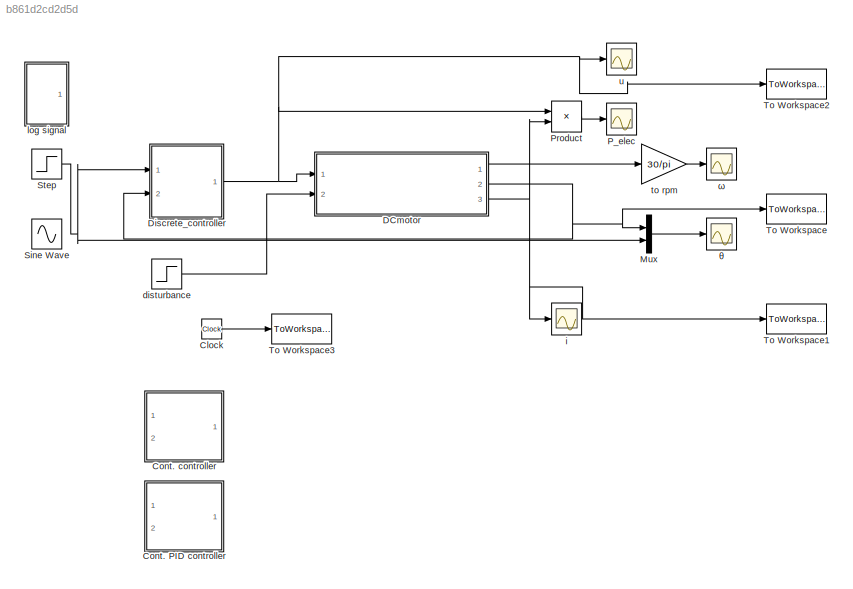
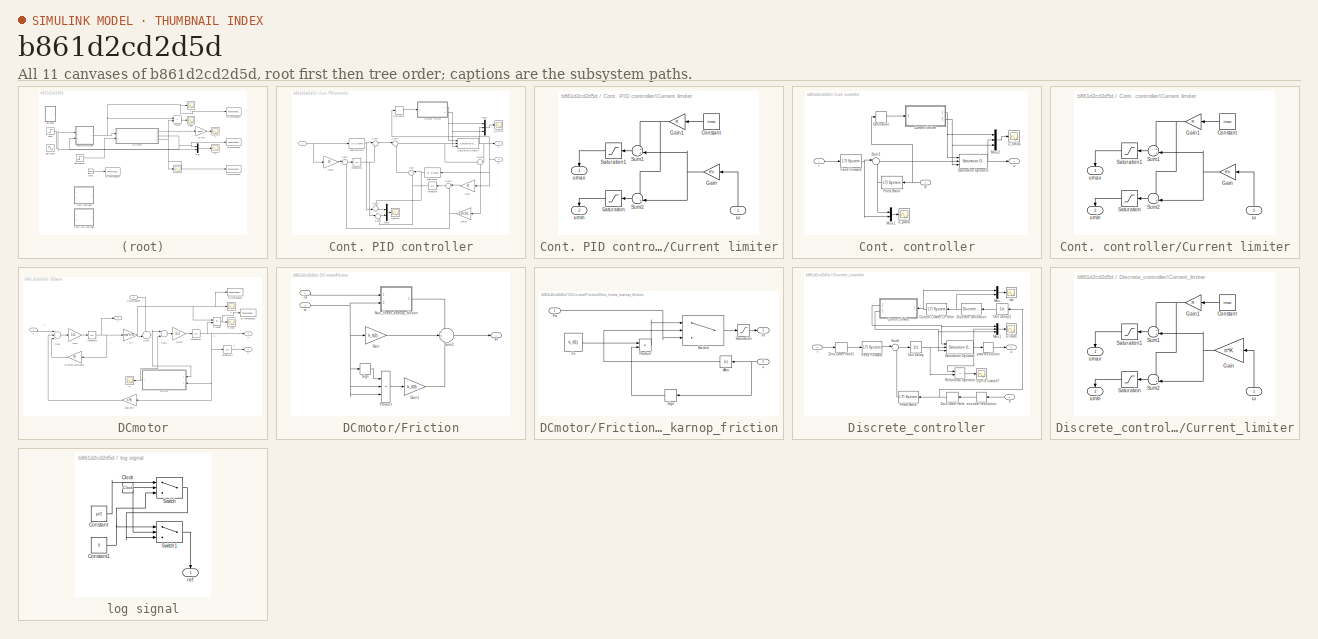
[diagram: thumbnail index - all 11 canvases of the model, root first then tree order]
MODEL slx_b861d2cd2d5d
KIND model
BLOCK [Clock] Clock
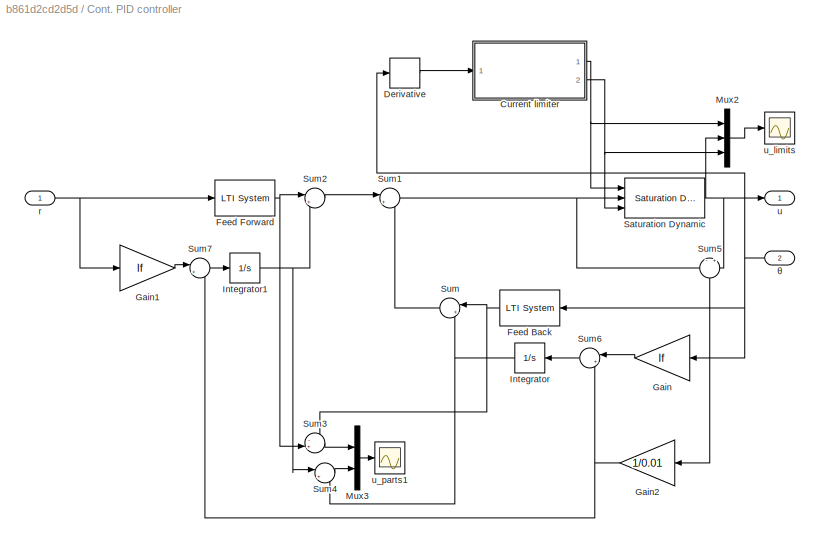
BLOCK [SubSystem] Cont. PID controller
  Commented = on
  Ports = [2, 1]
  RequestExecContextInheritance = off
BLOCK [SubSystem] Cont. PID controller/Current limiter
  Ports = [1, 2]
  RequestExecContextInheritance = off
BLOCK [Constant] Cont. PID controller/Current limiter/Constant
  Value = imax
BLOCK [Gain] Cont. PID controller/Current limiter/Gain
  Gain = K*n
  OutDataTypeStr = Inherit: Inherit via internal rule
  ParamDataTypeStr = Inherit: Inherit via internal rule
  SaturateOnIntegerOverflow = off
BLOCK [Gain] Cont. PID controller/Current limiter/Gain1
  Gain = R
  OutDataTypeStr = Inherit: Inherit via internal rule
  ParamDataTypeStr = Inherit: Inherit via internal rule
  SaturateOnIntegerOverflow = off
BLOCK [Saturate] Cont. PID controller/Current limiter/Saturation
  InputPortMap = u0
  LowerLimit = -umax
  Ports = [1, 1]
  UpperLimit = umax
BLOCK [Saturate] Cont. PID controller/Current limiter/Saturation1
  InputPortMap = u0
  LowerLimit = -umax
  Ports = [1, 1]
  UpperLimit = umax
BLOCK [Sum] Cont. PID controller/Current limiter/Sum1
  IconShape = round
  InputSameDT = off
  Inputs = ++|
  OutDataTypeStr = Inherit: Inherit via internal rule
  Ports = [2, 1]
  SaturateOnIntegerOverflow = off
BLOCK [Sum] Cont. PID controller/Current limiter/Sum2
  IconShape = round
  InputSameDT = off
  Inputs = -+|
  OutDataTypeStr = Inherit: Inherit via internal rule
  Ports = [2, 1]
  SaturateOnIntegerOverflow = off
BLOCK [Outport] Cont. PID controller/Current limiter/umax
  IconDisplay = Port number
BLOCK [Outport] Cont. PID controller/Current limiter/umin
  IconDisplay = Port number
  Port = 2
BLOCK [Inport] Cont. PID controller/Current limiter/ω
  IconDisplay = Port number
BLOCK [Derivative] Cont. PID controller/Derivative
BLOCK [Reference] Cont. PID controller/Feed Back  REF=cstblocks/LTI System
  IC = []
  Ports = [1, 1]
  SourceBlock = cstblocks/LTI System
  SourceType = LTI Block
  sys = Sfc/Rfc
BLOCK [Reference] Cont. PID controller/Feed Forward  REF=cstblocks/LTI System
  IC = []
  Ports = [1, 1]
  SourceBlock = cstblocks/LTI System
  SourceType = LTI Block
  sys = Tfc/Rfc
BLOCK [Gain] Cont. PID controller/Gain
  Gain = If
  OutDataTypeStr = Inherit: Inherit via internal rule
  ParamDataTypeStr = Inherit: Inherit via internal rule
  SaturateOnIntegerOverflow = off
BLOCK [Gain] Cont. PID controller/Gain1
  Gain = If
  OutDataTypeStr = Inherit: Inherit via internal rule
  ParamDataTypeStr = Inherit: Inherit via internal rule
  SaturateOnIntegerOverflow = off
BLOCK [Gain] Cont. PID controller/Gain2
  Gain = 1/0.01
  OutDataTypeStr = Inherit: Inherit via internal rule
  ParamDataTypeStr = Inherit: Inherit via internal rule
  SaturateOnIntegerOverflow = off
BLOCK [Integrator] Cont. PID controller/Integrator
  Ports = [1, 1]
BLOCK [Integrator] Cont. PID controller/Integrator1
  Ports = [1, 1]
BLOCK [Mux] Cont. PID controller/Mux2
  DisplayOption = bar
  Inputs = 3
  Ports = [3, 1]
BLOCK [Mux] Cont. PID controller/Mux3
  DisplayOption = bar
  Inputs = 2
  Ports = [2, 1]
BLOCK [Reference] Cont. PID controller/Saturation Dynamic  REF=simulink/Discontinuities/Saturation
Dynamic
  DoSatur = off
  LockScale = off
  OutDataType = fixdt(1, 16)
  OutDataTypeStr = Inherit: Same as second input
  OutMax = []
  OutMin = []
  OutScaling = 2^-10
  OutputDataTypeScalingMode = Same as second input
  Ports = [3, 1]
  RndMeth = Floor
  SourceBlock = simulink/Discontinuities/Saturation\nDynamic
  SourceType = Saturation Dynamic
BLOCK [Sum] Cont. PID controller/Sum
  IconShape = round
  InputSameDT = off
  Inputs = |++
  OutDataTypeStr = Inherit: Inherit via internal rule
  Ports = [2, 1]
  SaturateOnIntegerOverflow = off
BLOCK [Sum] Cont. PID controller/Sum1
  IconShape = round
  InputSameDT = off
  Inputs = |+-
  OutDataTypeStr = Inherit: Inherit via internal rule
  Ports = [2, 1]
  SaturateOnIntegerOverflow = off
BLOCK [Sum] Cont. PID controller/Sum2
  IconShape = round
  InputSameDT = off
  Inputs = |++
  OutDataTypeStr = Inherit: Inherit via internal rule
  Ports = [2, 1]
  SaturateOnIntegerOverflow = off
BLOCK [Sum] Cont. PID controller/Sum3
  IconShape = round
  InputSameDT = off
  Inputs = -+|
  OutDataTypeStr = Inherit: Inherit via internal rule
  Ports = [2, 1]
  SaturateOnIntegerOverflow = off
BLOCK [Sum] Cont. PID controller/Sum4
  IconShape = round
  InputSameDT = off
  Inputs = |+-
  OutDataTypeStr = Inherit: Inherit via internal rule
  Ports = [2, 1]
  SaturateOnIntegerOverflow = off
BLOCK [Sum] Cont. PID controller/Sum5
  IconShape = round
  InputSameDT = off
  Inputs = -|+
  OutDataTypeStr = Inherit: Inherit via internal rule
  Ports = [2, 1]
  SaturateOnIntegerOverflow = off
BLOCK [Sum] Cont. PID controller/Sum6
  IconShape = round
  InputSameDT = off
  Inputs = |+-
  OutDataTypeStr = Inherit: Inherit via internal rule
  Ports = [2, 1]
  SaturateOnIntegerOverflow = off
BLOCK [Sum] Cont. PID controller/Sum7
  IconShape = round
  InputSameDT = off
  Inputs = |++
  OutDataTypeStr = Inherit: Inherit via internal rule
  Ports = [2, 1]
  SaturateOnIntegerOverflow = off
BLOCK [Inport] Cont. PID controller/r
  IconDisplay = Port number
BLOCK [Outport] Cont. PID controller/u
  IconDisplay = Port number
BLOCK [Scope] Cont. PID controller/u_limits
  Floating = off
  LimitDataPoints = off
  NumInputPorts = 1
  Ports = [1]
  SaveName = ScopeData10
  ShowLegends = off
  ZoomMode = xonly
BLOCK [Scope] Cont. PID controller/u_parts1
  Floating = off
  LimitDataPoints = off
  NumInputPorts = 1
  Ports = [1]
  SaveName = ScopeData13
  ShowLegends = off
  ZoomMode = xonly
BLOCK [Inport] Cont. PID controller/θ
  IconDisplay = Port number
  Port = 2
BLOCK [SubSystem] Cont. controller
  Commented = on
  Ports = [2, 1]
  RequestExecContextInheritance = off
BLOCK [SubSystem] Cont. controller/Current limiter
  Ports = [1, 2]
  RequestExecContextInheritance = off
BLOCK [Constant] Cont. controller/Current limiter/Constant
  Value = imax
BLOCK [Gain] Cont. controller/Current limiter/Gain
  Gain = K*n
  OutDataTypeStr = Inherit: Inherit via internal rule
  ParamDataTypeStr = Inherit: Inherit via internal rule
  SaturateOnIntegerOverflow = off
BLOCK [Gain] Cont. controller/Current limiter/Gain1
  Gain = R
  OutDataTypeStr = Inherit: Inherit via internal rule
  ParamDataTypeStr = Inherit: Inherit via internal rule
  SaturateOnIntegerOverflow = off
BLOCK [Saturate] Cont. controller/Current limiter/Saturation
  InputPortMap = u0
  LowerLimit = -umax
  Ports = [1, 1]
  UpperLimit = umax
BLOCK [Saturate] Cont. controller/Current limiter/Saturation1
  InputPortMap = u0
  LowerLimit = -umax
  Ports = [1, 1]
  UpperLimit = umax
BLOCK [Sum] Cont. controller/Current limiter/Sum1
  IconShape = round
  InputSameDT = off
  Inputs = ++|
  OutDataTypeStr = Inherit: Inherit via internal rule
  Ports = [2, 1]
  SaturateOnIntegerOverflow = off
BLOCK [Sum] Cont. controller/Current limiter/Sum2
  IconShape = round
  InputSameDT = off
  Inputs = -+|
  OutDataTypeStr = Inherit: Inherit via internal rule
  Ports = [2, 1]
  SaturateOnIntegerOverflow = off
BLOCK [Outport] Cont. controller/Current limiter/umax
  IconDisplay = Port number
BLOCK [Outport] Cont. controller/Current limiter/umin
  IconDisplay = Port number
  Port = 2
BLOCK [Inport] Cont. controller/Current limiter/ω
  IconDisplay = Port number
BLOCK [Derivative] Cont. controller/Derivative
BLOCK [Reference] Cont. controller/Feed Back  REF=cstblocks/LTI System
  IC = []
  Ports = [1, 1]
  SourceBlock = cstblocks/LTI System
  SourceType = LTI Block
  sys = Sc/Rc
BLOCK [Reference] Cont. controller/Feed Forward  REF=cstblocks/LTI System
  IC = []
  Ports = [1, 1]
  SourceBlock = cstblocks/LTI System
  SourceType = LTI Block
  sys = Tc/Rc
BLOCK [Mux] Cont. controller/Mux1
  DisplayOption = bar
  Inputs = 2
  Ports = [2, 1]
BLOCK [Mux] Cont. controller/Mux2
  DisplayOption = bar
  Inputs = 3
  Ports = [3, 1]
BLOCK [Reference] Cont. controller/Saturation Dynamic  REF=simulink/Discontinuities/Saturation
Dynamic
  DoSatur = off
  LockScale = off
  OutDataType = fixdt(1, 16)
  OutDataTypeStr = Inherit: Same as second input
  OutMax = []
  OutMin = []
  OutScaling = 2^-10
  OutputDataTypeScalingMode = Same as second input
  Ports = [3, 1]
  RndMeth = Floor
  SourceBlock = simulink/Discontinuities/Saturation\nDynamic
  SourceType = Saturation Dynamic
BLOCK [Sum] Cont. controller/Sum1
  IconShape = round
  InputSameDT = off
  Inputs = |+-
  OutDataTypeStr = Inherit: Inherit via internal rule
  Ports = [2, 1]
  SaturateOnIntegerOverflow = off
BLOCK [Inport] Cont. controller/r
  IconDisplay = Port number
BLOCK [Outport] Cont. controller/u
  IconDisplay = Port number
BLOCK [Scope] Cont. controller/u_limits
  Floating = off
  LimitDataPoints = off
  NumInputPorts = 1
  Ports = [1]
  SaveName = ScopeData10
  ShowLegends = off
  ZoomMode = xonly
BLOCK [Scope] Cont. controller/u_parts
  Floating = off
  LimitDataPoints = off
  NumInputPorts = 1
  Ports = [1]
  SaveName = ScopeData9
  ShowLegends = off
  ZoomMode = xonly
BLOCK [Inport] Cont. controller/θ
  IconDisplay = Port number
  Port = 2
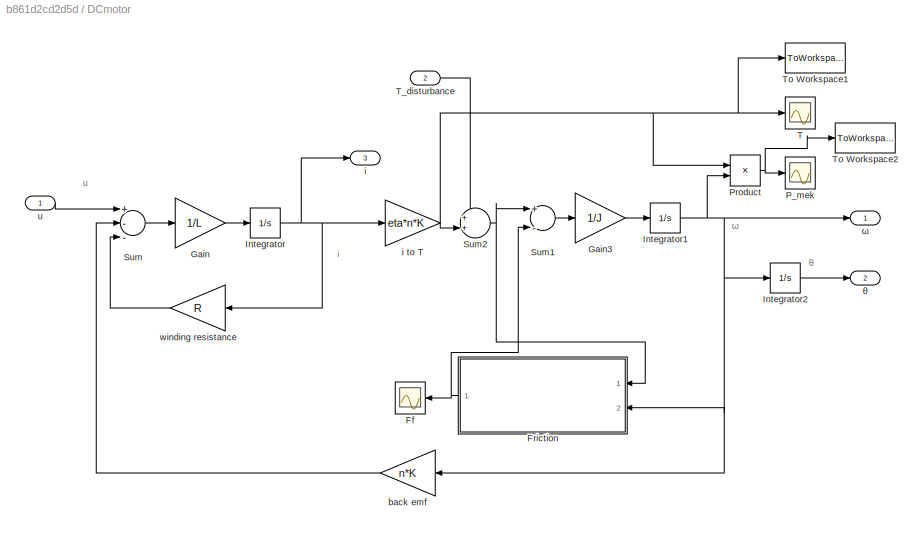
BLOCK [SubSystem] DCmotor
  Ports = [2, 3]
  RequestExecContextInheritance = off
BLOCK [Scope] DCmotor/Ff
  Floating = off
  LimitDataPoints = off
  NumInputPorts = 1
  Ports = [1]
  SaveName = ScopeData5
  ShowLegends = off
  ZoomMode = yonly
BLOCK [SubSystem] DCmotor/Friction
  Ports = [2, 1]
  RequestExecContextInheritance = off
BLOCK [Outport] DCmotor/Friction/Ff
  IconDisplay = Port number
BLOCK [Gain] DCmotor/Friction/Gain
  Gain = k_f(2)
  OutDataTypeStr = Inherit: Inherit via internal rule
  ParamDataTypeStr = Inherit: Inherit via internal rule
  SaturateOnIntegerOverflow = off
BLOCK [Gain] DCmotor/Friction/Gain1
  Gain = k_f(3)
  OutDataTypeStr = Inherit: Inherit via internal rule
  ParamDataTypeStr = Inherit: Inherit via internal rule
  SaturateOnIntegerOverflow = off
BLOCK [SubSystem] DCmotor/Friction/Non_linear_karnop_friction
  Ports = [2, 1]
  RequestExecContextInheritance = off
BLOCK [Abs] DCmotor/Friction/Non_linear_karnop_friction/Abs
  SaturateOnIntegerOverflow = off
BLOCK [Inport] DCmotor/Friction/Non_linear_karnop_friction/Fa
  IconDisplay = Port number
BLOCK [Constant] DCmotor/Friction/Non_linear_karnop_friction/Fc
  Value = k_f(1)
BLOCK [Outport] DCmotor/Friction/Non_linear_karnop_friction/Ff
  IconDisplay = Port number
BLOCK [Product] DCmotor/Friction/Non_linear_karnop_friction/Product
  InputSameDT = off
  OutDataTypeStr = Inherit: Inherit via internal rule
  Ports = [2, 1]
  SaturateOnIntegerOverflow = off
BLOCK [Saturate] DCmotor/Friction/Non_linear_karnop_friction/Saturation
  InputPortMap = u0
  LowerLimit = -k_f(1)
  Ports = [1, 1]
  UpperLimit = k_f(1)
BLOCK [Signum] DCmotor/Friction/Non_linear_karnop_friction/Sign
BLOCK [Switch] DCmotor/Friction/Non_linear_karnop_friction/Switch
  Criteria = u2 > Threshold
  InputSameDT = off
  SaturateOnIntegerOverflow = off
  Threshold = dv
BLOCK [Inport] DCmotor/Friction/Non_linear_karnop_friction/v
  IconDisplay = Port number
  Port = 2
BLOCK [Product] DCmotor/Friction/Product
  InputSameDT = off
  Inputs = 3
  OutDataTypeStr = Inherit: Inherit via internal rule
  Ports = [3, 1]
  RndMeth = Floor
  SaturateOnIntegerOverflow = off
BLOCK [Signum] DCmotor/Friction/Sign
BLOCK [Sum] DCmotor/Friction/Sum2
  IconShape = round
  InputSameDT = off
  Inputs = +++
  OutDataTypeStr = Inherit: Inherit via internal rule
  Ports = [3, 1]
  SaturateOnIntegerOverflow = off
BLOCK [Inport] DCmotor/Friction/Ta
  IconDisplay = Port number
BLOCK [Inport] DCmotor/Friction/ω
  IconDisplay = Port number
  Port = 2
BLOCK [Gain] DCmotor/Gain
  Gain = 1/L
  OutDataTypeStr = Inherit: Inherit via internal rule
  ParamDataTypeStr = Inherit: Inherit via internal rule
  SaturateOnIntegerOverflow = off
BLOCK [Gain] DCmotor/Gain3
  Gain = 1/J
  OutDataTypeStr = Inherit: Inherit via internal rule
  ParamDataTypeStr = Inherit: Inherit via internal rule
  SaturateOnIntegerOverflow = off
BLOCK [Integrator] DCmotor/Integrator
  Ports = [1, 1]
BLOCK [Integrator] DCmotor/Integrator1
  Ports = [1, 1]
BLOCK [Integrator] DCmotor/Integrator2
  Ports = [1, 1]
BLOCK [Scope] DCmotor/P_mek
  Floating = off
  LimitDataPoints = off
  NumInputPorts = 1
  Ports = [1]
  SaveName = ScopeData8
  ShowLegends = off
  ZoomMode = xonly
BLOCK [Product] DCmotor/Product
  InputSameDT = off
  OutDataTypeStr = Inherit: Inherit via internal rule
  Ports = [2, 1]
  RndMeth = Floor
  SaturateOnIntegerOverflow = off
BLOCK [Sum] DCmotor/Sum
  InputSameDT = off
  Inputs = +--
  OutDataTypeStr = Inherit: Inherit via internal rule
  Ports = [3, 1]
  SaturateOnIntegerOverflow = off
BLOCK [Sum] DCmotor/Sum1
  InputSameDT = off
  Inputs = +-
  OutDataTypeStr = Inherit: Inherit via internal rule
  Ports = [2, 1]
  SaturateOnIntegerOverflow = off
BLOCK [Sum] DCmotor/Sum2
  IconShape = round
  InputSameDT = off
  Inputs = ++|
  OutDataTypeStr = Inherit: Inherit via internal rule
  Ports = [2, 1]
  SaturateOnIntegerOverflow = off
BLOCK [Scope] DCmotor/T
  Floating = off
  LimitDataPoints = off
  NumInputPorts = 1
  Ports = [1]
  SaveName = ScopeData7
  ShowLegends = off
  ZoomMode = yonly
BLOCK [Inport] DCmotor/T_disturbance
  IconDisplay = Port number
  Port = 2
BLOCK [ToWorkspace] DCmotor/To Workspace1
  FixptAsFi = on
  MaxDataPoints = inf
  Ports = [1]
  SampleTime = 1/100
  Save2DSignal = 2-D array (concatenate along first dimension)
  VariableName = Tout
BLOCK [ToWorkspace] DCmotor/To Workspace2
  FixptAsFi = on
  MaxDataPoints = inf
  Ports = [1]
  SampleTime = 1/100
  Save2DSignal = 2-D array (concatenate along first dimension)
  VariableName = Pout
BLOCK [Gain] DCmotor/back emf
  Gain = n*K
  OutDataTypeStr = Inherit: Inherit via internal rule
  ParamDataTypeStr = Inherit: Inherit via internal rule
  SaturateOnIntegerOverflow = off
BLOCK [Outport] DCmotor/i
  IconDisplay = Port number
  Port = 3
BLOCK [Gain] DCmotor/i to T
  Gain = eta*n*K
  OutDataTypeStr = Inherit: Inherit via internal rule
  ParamDataTypeStr = Inherit: Inherit via internal rule
  SaturateOnIntegerOverflow = off
BLOCK [Inport] DCmotor/u
  IconDisplay = Port number
BLOCK [Gain] DCmotor/winding resistance
  Gain = R
  OutDataTypeStr = Inherit: Inherit via internal rule
  ParamDataTypeStr = Inherit: Inherit via internal rule
  SaturateOnIntegerOverflow = off
BLOCK [Outport] DCmotor/θ
  IconDisplay = Port number
  Port = 2
BLOCK [Outport] DCmotor/ω
  IconDisplay = Port number
BLOCK [SubSystem] Discrete_controller
  Ports = [2, 1]
  RequestExecContextInheritance = off
BLOCK [Reference] Discrete_controller/Current Limiter LP-filter  REF=cstblocks/LTI System
  IC = []
  Ports = [1, 1]
  SourceBlock = cstblocks/LTI System
  SourceType = LTI Block
  sys = Gdcllp
BLOCK [SubSystem] Discrete_controller/Current_limiter
  Ports = [1, 2]
  RequestExecContextInheritance = off
BLOCK [Constant] Discrete_controller/Current_limiter/Constant
  Value = imax
BLOCK [Gain] Discrete_controller/Current_limiter/Gain
  Gain = n*K
  OutDataTypeStr = Inherit: Inherit via internal rule
  ParamDataTypeStr = Inherit: Inherit via internal rule
  SaturateOnIntegerOverflow = off
BLOCK [Gain] Discrete_controller/Current_limiter/Gain1
  Gain = R
  OutDataTypeStr = Inherit: Inherit via internal rule
  ParamDataTypeStr = Inherit: Inherit via internal rule
  SaturateOnIntegerOverflow = off
BLOCK [Saturate] Discrete_controller/Current_limiter/Saturation
  InputPortMap = u0
  LowerLimit = -umax
  Ports = [1, 1]
  UpperLimit = umax
BLOCK [Saturate] Discrete_controller/Current_limiter/Saturation1
  InputPortMap = u0
  LowerLimit = -umax
  Ports = [1, 1]
  UpperLimit = umax
BLOCK [Sum] Discrete_controller/Current_limiter/Sum1
  IconShape = round
  InputSameDT = off
  Inputs = ++|
  OutDataTypeStr = Inherit: Inherit via internal rule
  Ports = [2, 1]
  SaturateOnIntegerOverflow = off
BLOCK [Sum] Discrete_controller/Current_limiter/Sum2
  IconShape = round
  InputSameDT = off
  Inputs = -+|
  OutDataTypeStr = Inherit: Inherit via internal rule
  Ports = [2, 1]
  SaturateOnIntegerOverflow = off
BLOCK [Outport] Discrete_controller/Current_limiter/umax
  IconDisplay = Port number
BLOCK [Outport] Discrete_controller/Current_limiter/umin
  IconDisplay = Port number
  Port = 2
BLOCK [Inport] Discrete_controller/Current_limiter/ω
  IconDisplay = Port number
BLOCK [Reference] Discrete_controller/Discrete Derivative  REF=simulink/Discrete/Discrete Derivative
  DoSatur = off
  ICPrevScaledInput = 0.0
  InputProcessing = Inherited
  LockScale = off
  OutDataType = fixdt(1, 16)
  OutDataTypeStr = Inherit: Inherit via internal rule
  OutMax = []
  OutMin = []
  OutScaling = 2^-10
  OutputDataTypeScalingMode = Inherit via internal rule
  Ports = [1, 1]
  RndMeth = Floor
  SourceBlock = simulink/Discrete/Discrete Derivative
  SourceType = Discrete Derivative
  gainval = 1.0
BLOCK [Reference] Discrete_controller/Feed Back  REF=cstblocks/LTI System
  IC = []
  Ports = [1, 1]
  SourceBlock = cstblocks/LTI System
  SourceType = LTI Block
  sys = Gdfb
BLOCK [Reference] Discrete_controller/Feed Forward  REF=cstblocks/LTI System
  IC = []
  Ports = [1, 1]
  SourceBlock = cstblocks/LTI System
  SourceType = LTI Block
  sys = Gdff
BLOCK [Mux] Discrete_controller/Mux
  DisplayOption = bar
  Inputs = 2
  Ports = [2, 1]
BLOCK [Mux] Discrete_controller/Mux1
  DisplayOption = bar
  Inputs = 3
  Ports = [3, 1]
BLOCK [RelationalOperator] Discrete_controller/Relational Operator
  InputSameDT = off
  Operator = ~=
  OutDataTypeStr = boolean
  Ports = [2, 1]
BLOCK [Reference] Discrete_controller/Saturation Dynamic  REF=simulink/Discontinuities/Saturation
Dynamic
  DoSatur = off
  LockScale = off
  OutDataType = fixdt(1, 16)
  OutDataTypeStr = Inherit: Same as second input
  OutMax = []
  OutMin = []
  OutScaling = 2^-10
  OutputDataTypeScalingMode = Same as second input
  Ports = [3, 1]
  RndMeth = Floor
  SourceBlock = simulink/Discontinuities/Saturation\nDynamic
  SourceType = Saturation Dynamic
BLOCK [Sum] Discrete_controller/Sum1
  IconShape = round
  InputSameDT = off
  Inputs = |+-
  OutDataTypeStr = Inherit: Inherit via internal rule
  Ports = [2, 1]
  SaturateOnIntegerOverflow = off
BLOCK [UnitDelay] Discrete_controller/Unit Delay
  InputProcessing = Elements as channels (sample based)
  SampleTime = -1
BLOCK [UnitDelay] Discrete_controller/Unit Delay1
  InputProcessing = Elements as channels (sample based)
  SampleTime = -1
BLOCK [ZeroOrderHold] Discrete_controller/Zero-Order Hold
  SampleTime = Ts
BLOCK [ZeroOrderHold] Discrete_controller/Zero-Order Hold1
  SampleTime = Ts
BLOCK [Scope] Discrete_controller/curr is limited?
  Floating = off
  LimitDataPoints = off
  NumInputPorts = 1
  Ports = [1]
  SaveName = ScopeData12
  ShowLegends = off
  ZoomMode = xonly
BLOCK [Quantizer] Discrete_controller/encoder resolution
  QuantizationInterval = enc_res
BLOCK [Quantizer] Discrete_controller/pwm resolution
  QuantizationInterval = volt_res
BLOCK [Inport] Discrete_controller/r
  IconDisplay = Port number
BLOCK [Outport] Discrete_controller/u
  IconDisplay = Port number
BLOCK [Scope] Discrete_controller/u limits
  Floating = off
  LimitDataPoints = off
  NumInputPorts = 1
  Ports = [1]
  SaveName = ScopeData6
  ShowLegends = off
  ZoomMode = xonly
BLOCK [Scope] Discrete_controller/wd
  Floating = off
  LimitDataPoints = off
  NumInputPorts = 1
  Ports = [1]
  SaveName = ScopeData11
  ShowLegends = off
  ZoomMode = xonly
BLOCK [Inport] Discrete_controller/θ
  IconDisplay = Port number
  Port = 2
BLOCK [Mux] Mux
  DisplayOption = bar
  Inputs = 2
  Ports = [2, 1]
BLOCK [Scope] P_elec
  Floating = off
  LimitDataPoints = off
  NumInputPorts = 1
  Ports = [1]
  SaveName = ScopeData3
  ShowLegends = off
BLOCK [Product] Product
  InputSameDT = off
  OutDataTypeStr = Inherit: Inherit via internal rule
  Ports = [2, 1]
  RndMeth = Floor
  SaturateOnIntegerOverflow = off
BLOCK [Sin] Sine Wave
  Amplitude = 2
  Frequency = 2*pi
  Ports = [0, 1]
  SampleTime = 0
BLOCK [Step] Step
  After = pi
  SampleTime = 0
  Time = 0
BLOCK [ToWorkspace] To Workspace
  FixptAsFi = on
  MaxDataPoints = inf
  Ports = [1]
  SampleTime = 1/100
  Save2DSignal = 2-D array (concatenate along first dimension)
  VariableName = thout
BLOCK [ToWorkspace] To Workspace1
  FixptAsFi = on
  MaxDataPoints = inf
  Ports = [1]
  SampleTime = 1/100
  Save2DSignal = 2-D array (concatenate along first dimension)
  VariableName = iout
BLOCK [ToWorkspace] To Workspace2
  FixptAsFi = on
  MaxDataPoints = inf
  Ports = [1]
  SampleTime = 1/100
  Save2DSignal = 2-D array (concatenate along first dimension)
  VariableName = uout
BLOCK [ToWorkspace] To Workspace3
  FixptAsFi = on
  MaxDataPoints = inf
  Ports = [1]
  SampleTime = 1/100
  Save2DSignal = 2-D array (concatenate along first dimension)
  VariableName = tout
BLOCK [Step] disturbance
  After = 0
  SampleTime = 0
  Time = 0
BLOCK [Scope] i
  Floating = off
  LimitDataPoints = off
  NumInputPorts = 1
  Ports = [1]
  SaveName = ScopeData4
  ShowLegends = off
  ZoomMode = yonly
BLOCK [SubSystem] log signal
  Ports = [0, 1]
  RequestExecContextInheritance = off
BLOCK [Clock] log signal/Clock
BLOCK [Constant] log signal/Constant
  Value = pi/2
BLOCK [Constant] log signal/Constant1
  Value = 0
BLOCK [Switch] log signal/Switch
  Criteria = u2 > Threshold
  InputSameDT = off
  SaturateOnIntegerOverflow = off
  Threshold = 1
BLOCK [Switch] log signal/Switch1
  Criteria = u2 > Threshold
  InputSameDT = off
  SaturateOnIntegerOverflow = off
  Threshold = 3
BLOCK [Outport] log signal/ref
  IconDisplay = Port number
BLOCK [Gain] to rpm
  Gain = 30/pi
  OutDataTypeStr = Inherit: Inherit via internal rule
  ParamDataTypeStr = Inherit: Inherit via internal rule
  SaturateOnIntegerOverflow = off
BLOCK [Scope] u
  Floating = off
  LimitDataPoints = off
  NumInputPorts = 1
  Ports = [1]
  SaveName = ScopeData2
  ShowLegends = off
  ZoomMode = xonly
BLOCK [Scope] θ
  Floating = off
  LimitDataPoints = off
  NumInputPorts = 1
  Ports = [1]
  SaveName = ScopeData1
  ShowLegends = off
  ZoomMode = yonly
BLOCK [Scope] ω
  Floating = off
  LimitDataPoints = off
  NumInputPorts = 1
  Ports = [1]
  ShowLegends = off
  ZoomMode = yonly
ANNOTATION DCmotor: i
ANNOTATION DCmotor: u
ANNOTATION DCmotor: θ
ANNOTATION DCmotor: ω
LINE Clock:1 -> To Workspace3:1
LINE Cont. PID controller/Current limiter/Constant:1 -> Cont. PID controller/Current limiter/Gain1:1
NET Cont. PID controller/Current limiter/Gain1:1 -> Cont. PID controller/Current limiter/Sum1:1, Cont. PID controller/Current limiter/Sum2:1
NET Cont. PID controller/Current limiter/Gain:1 -> Cont. PID controller/Current limiter/Sum1:2, Cont. PID controller/Current limiter/Sum2:2
LINE Cont. PID controller/Current limiter/Saturation1:1 -> Cont. PID controller/Current limiter/umax:1
LINE Cont. PID controller/Current limiter/Saturation:1 -> Cont. PID controller/Current limiter/umin:1
LINE Cont. PID controller/Current limiter/Sum1:1 -> Cont. PID controller/Current limiter/Saturation1:1
LINE Cont. PID controller/Current limiter/Sum2:1 -> Cont. PID controller/Current limiter/Saturation:1
LINE Cont. PID controller/Current limiter/ω:1 -> Cont. PID controller/Current limiter/Gain:1
NET Cont. PID controller/Current limiter:1 -> Cont. PID controller/Mux2:1, Cont. PID controller/Saturation Dynamic:1
NET Cont. PID controller/Current limiter:2 -> Cont. PID controller/Mux2:3, Cont. PID controller/Saturation Dynamic:3
LINE Cont. PID controller/Derivative:1 -> Cont. PID controller/Current limiter:1
NET Cont. PID controller/Feed Back:1 -> Cont. PID controller/Sum3:1, Cont. PID controller/Sum:1
NET Cont. PID controller/Feed Forward:1 -> Cont. PID controller/Sum2:1, Cont. PID controller/Sum3:2
LINE Cont. PID controller/Gain1:1 -> Cont. PID controller/Sum7:1
NET Cont. PID controller/Gain2:1 -> Cont. PID controller/Sum6:2, Cont. PID controller/Sum7:2
LINE Cont. PID controller/Gain:1 -> Cont. PID controller/Sum6:1
NET Cont. PID controller/Integrator1:1 -> Cont. PID controller/Sum2:2, Cont. PID controller/Sum4:1
NET Cont. PID controller/Integrator:1 -> Cont. PID controller/Sum4:2, Cont. PID controller/Sum:2
LINE Cont. PID controller/Mux2:1 -> Cont. PID controller/u_limits:1
LINE Cont. PID controller/Mux3:1 -> Cont. PID controller/u_parts1:1
NET Cont. PID controller/Saturation Dynamic:1 -> Cont. PID controller/Mux2:2, Cont. PID controller/Sum5:2, Cont. PID controller/u:1
NET Cont. PID controller/Sum1:1 -> Cont. PID controller/Saturation Dynamic:2, Cont. PID controller/Sum5:1
LINE Cont. PID controller/Sum2:1 -> Cont. PID controller/Sum1:1
LINE Cont. PID controller/Sum3:1 -> Cont. PID controller/Mux3:1
LINE Cont. PID controller/Sum4:1 -> Cont. PID controller/Mux3:2
LINE Cont. PID controller/Sum5:1 -> Cont. PID controller/Gain2:1
LINE Cont. PID controller/Sum6:1 -> Cont. PID controller/Integrator:1
LINE Cont. PID controller/Sum7:1 -> Cont. PID controller/Integrator1:1
LINE Cont. PID controller/Sum:1 -> Cont. PID controller/Sum1:2
NET Cont. PID controller/r:1 -> Cont. PID controller/Feed Forward:1, Cont. PID controller/Gain1:1
NET Cont. PID controller/θ:1 -> Cont. PID controller/Derivative:1, Cont. PID controller/Feed Back:1, Cont. PID controller/Gain:1
LINE Cont. controller/Current limiter/Constant:1 -> Cont. controller/Current limiter/Gain1:1
NET Cont. controller/Current limiter/Gain1:1 -> Cont. controller/Current limiter/Sum1:1, Cont. controller/Current limiter/Sum2:1
NET Cont. controller/Current limiter/Gain:1 -> Cont. controller/Current limiter/Sum1:2, Cont. controller/Current limiter/Sum2:2
LINE Cont. controller/Current limiter/Saturation1:1 -> Cont. controller/Current limiter/umax:1
LINE Cont. controller/Current limiter/Saturation:1 -> Cont. controller/Current limiter/umin:1
LINE Cont. controller/Current limiter/Sum1:1 -> Cont. controller/Current limiter/Saturation1:1
LINE Cont. controller/Current limiter/Sum2:1 -> Cont. controller/Current limiter/Saturation:1
LINE Cont. controller/Current limiter/ω:1 -> Cont. controller/Current limiter/Gain:1
NET Cont. controller/Current limiter:1 -> Cont. controller/Mux2:1, Cont. controller/Saturation Dynamic:1
NET Cont. controller/Current limiter:2 -> Cont. controller/Mux2:3, Cont. controller/Saturation Dynamic:3
LINE Cont. controller/Derivative:1 -> Cont. controller/Current limiter:1
NET Cont. controller/Feed Back:1 -> Cont. controller/Mux1:1, Cont. controller/Sum1:2
NET Cont. controller/Feed Forward:1 -> Cont. controller/Mux1:2, Cont. controller/Sum1:1
LINE Cont. controller/Mux1:1 -> Cont. controller/u_parts:1
LINE Cont. controller/Mux2:1 -> Cont. controller/u_limits:1
NET Cont. controller/Saturation Dynamic:1 -> Cont. controller/Mux2:2, Cont. controller/u:1
LINE Cont. controller/Sum1:1 -> Cont. controller/Saturation Dynamic:2
LINE Cont. controller/r:1 -> Cont. controller/Feed Forward:1
NET Cont. controller/θ:1 -> Cont. controller/Derivative:1, Cont. controller/Feed Back:1
LINE DCmotor/Friction/Gain1:1 -> DCmotor/Friction/Sum2:3
LINE DCmotor/Friction/Gain:1 -> DCmotor/Friction/Sum2:2
LINE DCmotor/Friction/Non_linear_karnop_friction/Abs:1 -> DCmotor/Friction/Non_linear_karnop_friction/Switch:2
LINE DCmotor/Friction/Non_linear_karnop_friction/Fa:1 -> DCmotor/Friction/Non_linear_karnop_friction/Switch:3
LINE DCmotor/Friction/Non_linear_karnop_friction/Fc:1 -> DCmotor/Friction/Non_linear_karnop_friction/Product:1
LINE DCmotor/Friction/Non_linear_karnop_friction/Product:1 -> DCmotor/Friction/Non_linear_karnop_friction/Switch:1
LINE DCmotor/Friction/Non_linear_karnop_friction/Saturation:1 -> DCmotor/Friction/Non_linear_karnop_friction/Ff:1
LINE DCmotor/Friction/Non_linear_karnop_friction/Sign:1 -> DCmotor/Friction/Non_linear_karnop_friction/Product:2
LINE DCmotor/Friction/Non_linear_karnop_friction/Switch:1 -> DCmotor/Friction/Non_linear_karnop_friction/Saturation:1
NET DCmotor/Friction/Non_linear_karnop_friction/v:1 -> DCmotor/Friction/Non_linear_karnop_friction/Abs:1, DCmotor/Friction/Non_linear_karnop_friction/Sign:1
LINE DCmotor/Friction/Non_linear_karnop_friction:1 -> DCmotor/Friction/Sum2:1
LINE DCmotor/Friction/Product:1 -> DCmotor/Friction/Gain1:1
LINE DCmotor/Friction/Sign:1 -> DCmotor/Friction/Product:1
LINE DCmotor/Friction/Sum2:1 -> DCmotor/Friction/Ff:1
LINE DCmotor/Friction/Ta:1 -> DCmotor/Friction/Non_linear_karnop_friction:1
NET DCmotor/Friction/ω:1 -> DCmotor/Friction/Gain:1, DCmotor/Friction/Non_linear_karnop_friction:2, DCmotor/Friction/Product:2, DCmotor/Friction/Product:3, DCmotor/Friction/Sign:1
NET DCmotor/Friction:1 -> DCmotor/Ff:1, DCmotor/Sum1:2
LINE DCmotor/Gain3:1 -> DCmotor/Integrator1:1
LINE DCmotor/Gain:1 -> DCmotor/Integrator:1
NET DCmotor/Integrator1:1 -> DCmotor/Friction:2, DCmotor/Integrator2:1, DCmotor/Product:2, DCmotor/back emf:1, DCmotor/ω:1
LINE DCmotor/Integrator2:1 -> DCmotor/θ:1
NET DCmotor/Integrator:1 -> DCmotor/i to T:1, DCmotor/i:1, DCmotor/winding resistance:1
NET DCmotor/Product:1 -> DCmotor/P_mek:1, DCmotor/To Workspace2:1
LINE DCmotor/Sum1:1 -> DCmotor/Gain3:1
NET DCmotor/Sum2:1 -> DCmotor/Friction:1, DCmotor/Sum1:1
LINE DCmotor/Sum:1 -> DCmotor/Gain:1
LINE DCmotor/T_disturbance:1 -> DCmotor/Sum2:1
LINE DCmotor/back emf:1 -> DCmotor/Sum:2
NET DCmotor/i to T:1 -> DCmotor/Product:1, DCmotor/Sum2:2, DCmotor/T:1, DCmotor/To Workspace1:1
LINE DCmotor/u:1 -> DCmotor/Sum:1
LINE DCmotor/winding resistance:1 -> DCmotor/Sum:3
LINE DCmotor:1 -> to rpm:1
NET DCmotor:2 -> Discrete_controller:2, Mux:1, To Workspace:1
NET DCmotor:3 -> Product:2, To Workspace1:1, i:1
NET Discrete_controller/Current Limiter LP-filter:1 -> Discrete_controller/Current_limiter:1, Discrete_controller/Mux:1
LINE Discrete_controller/Current_limiter/Constant:1 -> Discrete_controller/Current_limiter/Gain1:1
NET Discrete_controller/Current_limiter/Gain1:1 -> Discrete_controller/Current_limiter/Sum1:1, Discrete_controller/Current_limiter/Sum2:1
NET Discrete_controller/Current_limiter/Gain:1 -> Discrete_controller/Current_limiter/Sum1:2, Discrete_controller/Current_limiter/Sum2:2
LINE Discrete_controller/Current_limiter/Saturation1:1 -> Discrete_controller/Current_limiter/umax:1
LINE Discrete_controller/Current_limiter/Saturation:1 -> Discrete_controller/Current_limiter/umin:1
LINE Discrete_controller/Current_limiter/Sum1:1 -> Discrete_controller/Current_limiter/Saturation1:1
LINE Discrete_controller/Current_limiter/Sum2:1 -> Discrete_controller/Current_limiter/Saturation:1
LINE Discrete_controller/Current_limiter/ω:1 -> Discrete_controller/Current_limiter/Gain:1
NET Discrete_controller/Current_limiter:1 -> Discrete_controller/Mux1:1, Discrete_controller/Saturation Dynamic:1
NET Discrete_controller/Current_limiter:2 -> Discrete_controller/Mux1:3, Discrete_controller/Saturation Dynamic:3
NET Discrete_controller/Discrete Derivative:1 -> Discrete_controller/Current Limiter LP-filter:1, Discrete_controller/Mux:2
LINE Discrete_controller/Feed Back:1 -> Discrete_controller/Sum1:2
LINE Discrete_controller/Feed Forward:1 -> Discrete_controller/Sum1:1
LINE Discrete_controller/Mux1:1 -> Discrete_controller/u limits:1
LINE Discrete_controller/Mux:1 -> Discrete_controller/wd:1
LINE Discrete_controller/Relational Operator:1 -> Discrete_controller/curr is limited?:1
NET Discrete_controller/Saturation Dynamic:1 -> Discrete_controller/Mux1:2, Discrete_controller/Relational Operator:1, Discrete_controller/pwm resolution:1
LINE Discrete_controller/Sum1:1 -> Discrete_controller/Unit Delay:1
LINE Discrete_controller/Unit Delay1:1 -> Discrete_controller/Discrete Derivative:1
NET Discrete_controller/Unit Delay:1 -> Discrete_controller/Relational Operator:2, Discrete_controller/Saturation Dynamic:2
LINE Discrete_controller/Zero-Order Hold1:1 -> Discrete_controller/Feed Forward:1
NET Discrete_controller/Zero-Order Hold:1 -> Discrete_controller/Feed Back:1, Discrete_controller/Unit Delay1:1
LINE Discrete_controller/encoder resolution:1 -> Discrete_controller/Zero-Order Hold:1
LINE Discrete_controller/pwm resolution:1 -> Discrete_controller/u:1
LINE Discrete_controller/r:1 -> Discrete_controller/Zero-Order Hold1:1
LINE Discrete_controller/θ:1 -> Discrete_controller/encoder resolution:1
NET Discrete_controller:1 -> DCmotor:1, Product:1, To Workspace2:1, u:1
LINE Mux:1 -> θ:1
LINE Product:1 -> P_elec:1
NET Step:1 -> Discrete_controller:1, Mux:2
LINE disturbance:1 -> DCmotor:2
NET log signal/Clock:1 -> log signal/Switch1:2, log signal/Switch:2
NET log signal/Constant1:1 -> log signal/Switch1:1, log signal/Switch:3
LINE log signal/Constant:1 -> log signal/Switch:1
LINE log signal/Switch1:1 -> log signal/ref:1
LINE log signal/Switch:1 -> log signal/Switch1:3
LINE to rpm:1 -> ω:1
note: NET lines group one-source signal fan-out (src -> all destinations, sorted); 1:1 wires keep LINE
